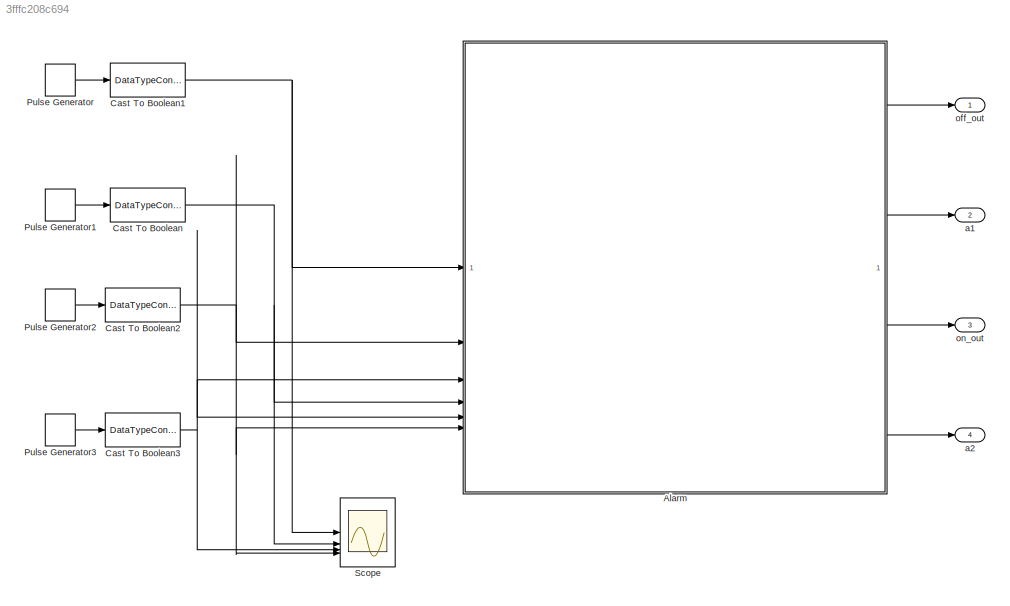
MODEL slx_3fffc208c694
KIND model
CONFIG AbsTol = auto
CONFIG EnableMultiTasking = off
CONFIG FixedStep = 0.01
CONFIG MaxStep = auto
CONFIG MinStep = auto
CONFIG RelTol = 1e-3
CONFIG SampleTimeConstraint = Unconstrained
CONFIG SolverName = VariableStepAuto
CONFIG StartTime = 0.0
CONFIG StopTime = 40
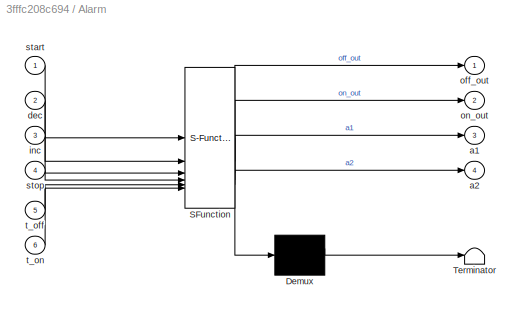
BLOCK [SubSystem] Alarm
  ErrorFcn = Stateflow.Translate.translate
  PermitHierarchicalResolution = ExplicitOnly
  PortSchema = {"entries":[{"content":{"sides":[{"content":{"connectorIds":["In1","In2","In3","In4","In5","In6"]},"type":"ConnectorPlacement.EquallySpacedRectSide","uuid":"67fa7592-dd5f-473b-adb5-31a8a36dc656"},{"content":{"connectorIds":["Out1","Out3","Out2","Out4"],"side":"RIGHT"},"type":"ConnectorPlacement.EquallySpacedRectSide","uuid":"ab42aef1-4252-4a8b-8856-fd08774fb9b6"},{"content":{"side":"TOP"},"type":"...<+273ch>
  SFBlockType = Chart
  TreatAsAtomicUnit = on
BLOCK [Demux] Alarm/ Demux 
  Outputs = 1
BLOCK [S-Function] Alarm/ SFunction 
  EnableBusSupport = on
  FunctionName = sf_sfun
  PortCounts = [6 5]
  SFcnIsStateOwnerBlock = off
  SFunctionDeploymentMode = off
  Tag = Stateflow S-Function 3
BLOCK [Terminator] Alarm/ Terminator 
BLOCK [Outport] Alarm/a1
  Port = 3
BLOCK [Outport] Alarm/a2
  Port = 4
BLOCK [Inport] Alarm/dec
  Port = 2
BLOCK [Inport] Alarm/inc
  Port = 3
BLOCK [Outport] Alarm/off_out
BLOCK [Outport] Alarm/on_out
  Port = 2
BLOCK [Inport] Alarm/start
BLOCK [Inport] Alarm/stop
  Port = 4
BLOCK [Inport] Alarm/t_off
  Port = 5
BLOCK [Inport] Alarm/t_on
  Port = 6
BLOCK [DataTypeConversion] Cast To Boolean
  OutDataTypeStr = boolean
  RndMeth = Floor
  SaturateOnIntegerOverflow = off
BLOCK [DataTypeConversion] Cast To Boolean1
  OutDataTypeStr = boolean
  RndMeth = Floor
  SaturateOnIntegerOverflow = off
BLOCK [DataTypeConversion] Cast To Boolean2
  OutDataTypeStr = boolean
  RndMeth = Floor
  SaturateOnIntegerOverflow = off
BLOCK [DataTypeConversion] Cast To Boolean3
  OutDataTypeStr = boolean
  RndMeth = Floor
  SaturateOnIntegerOverflow = off
BLOCK [DiscretePulseGenerator] Pulse Generator
  Period = 20
  PulseWidth = 10
BLOCK [DiscretePulseGenerator] Pulse Generator1
  Period = 40
  PulseWidth = 20
BLOCK [DiscretePulseGenerator] Pulse Generator2
  Period = 8
  PulseWidth = 4
BLOCK [DiscretePulseGenerator] Pulse Generator3
  Period = 4
  PulseWidth = 2
BLOCK [Scope] Scope
  Floating = off
  NumInputPorts = 4
  ScopeSpecificationString = Simulink.scopes.TimeScopeBlockCfg('CurrentConfiguration', extmgr.ConfigurationSet(extmgr.Configuration('Core','General UI',true),extmgr.Configuration('Core','Source UI',true),extmgr.Configuration('Sources','WiredSimulink',true),extmgr.Configuration('Visuals','Time Domain',true,'SerializedDisplays',{struct('MinYLimReal','-0.125','MaxYLimReal','1.125','YLabelReal','','MinYLimMag','0.00000','MaxYLimM...<+1442ch>
BLOCK [Outport] a1
  Port = 2
BLOCK [Outport] a2
  Port = 4
BLOCK [Outport] off_out
BLOCK [Outport] on_out
  Port = 3
LINE Alarm:1 -> off_out:1
LINE Alarm:2 -> on_out:1
LINE Alarm:3 -> a1:1
LINE Alarm:4 -> a2:1
NET Cast To Boolean1:1 -> Alarm:1, Scope:1
NET Cast To Boolean2:1 -> Alarm:2, Alarm:6, Scope:4
NET Cast To Boolean3:1 -> Alarm:3, Alarm:5, Scope:3
NET Cast To Boolean:1 -> Alarm:4, Scope:2
LINE Pulse Generator1:1 -> Cast To Boolean:1
LINE Pulse Generator2:1 -> Cast To Boolean2:1
LINE Pulse Generator3:1 -> Cast To Boolean3:1
LINE Pulse Generator:1 -> Cast To Boolean1:1
note: NET lines group one-source signal fan-out (src -> all destinations, sorted); 1:1 wires keep LINE
CHART Alarm states=8 transitions=10
  STATE_LABEL 'Shutdown'
  STATE_LABEL 'OP'
  STATE_LABEL 'Vol'
  STATE_LABEL 'One\nentry:a1 = true;\na2 = false;'
  STATE_LABEL 'Two\nentry: a2 = true;\n a1 = false;'
  STATE_LABEL '[inc==true && dec==false && start == true]'
  STATE_LABEL '[dec==true && inc == false && start == true]'
  STATE_LABEL 'Mode'
  STATE_LABEL 'ON\nentry:\non_out = true;\noff_out =false;\n'
  STATE_LABEL 'Off\nentry:\noff_out = true;\non_out = false;'
  STATE_LABEL '[t_on==true && t_off == false]'
  STATE_LABEL '[t_off==true && t_on==false]'
  STATE_LABEL 'Vol'
  STATE_LABEL 'One\nentry:a1 = true;\na2 = false;'
  STATE_LABEL 'Two\nentry: a2 = true;\n a1 = false;'
  STATE_LABEL '[inc==true && dec==false && start == true]'
  STATE_LABEL '[dec==true && inc == false && start == true]'
  STATE_LABEL 'One\nentry:a1 = true;\na2 = false;'
  STATE_LABEL 'Two\nentry: a2 = true;\n a1 = false;'
  STATE_LABEL 'Mode'
  STATE_LABEL 'ON\nentry:\non_out = true;\noff_out =false;\n'
  STATE_LABEL 'Off\nentry:\noff_out = true;\non_out = false;'
  STATE_LABEL '[t_on==true && t_off == false]'
  STATE_LABEL '[t_off==true && t_on==false]'
  STATE_LABEL 'ON\nentry:\non_out = true;\noff_out =false;\n'
  STATE_LABEL 'Off\nentry:\noff_out = true;\non_out = false;'
CHART  states=0 transitions=0
